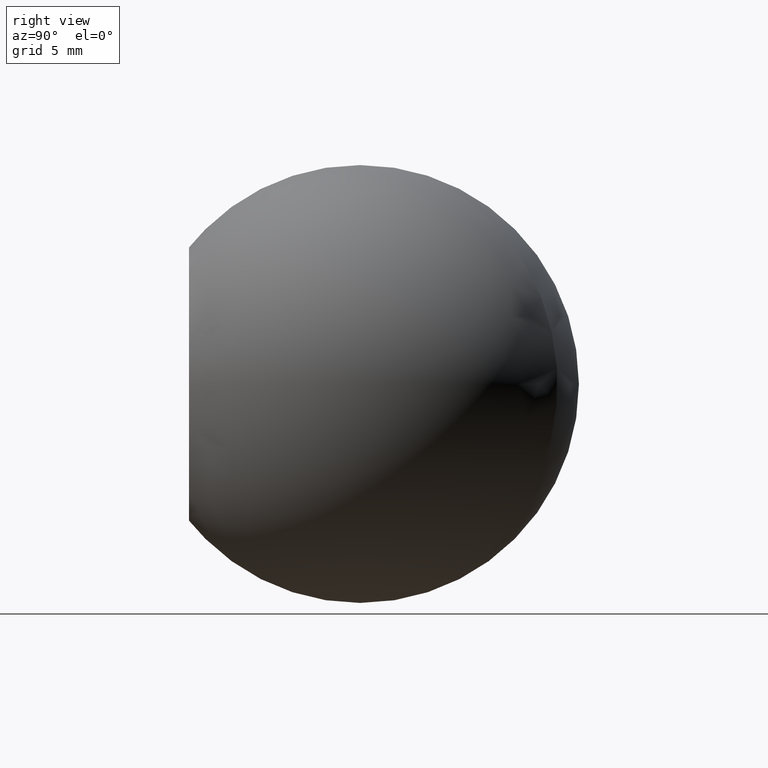
[diagram: clean part render]
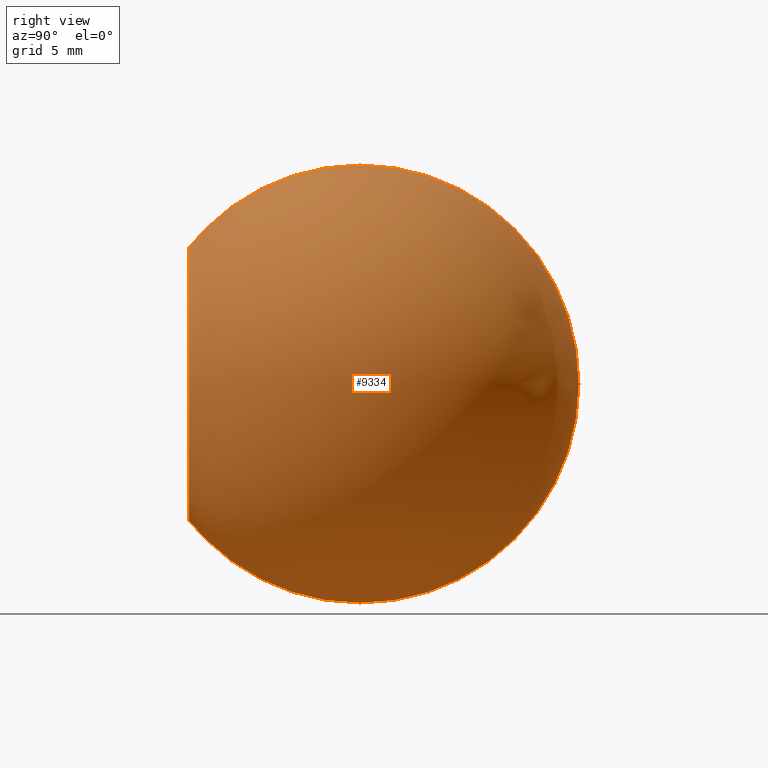
[diagram: same view with one face highlighted and labeled with its STEP entity id]
A machine part, right view. The second image highlights one B-rep face of the part: STEP entity #9334.
In plain terms, the highlighted spherical surface has radius 10 mm.
Its self-contained STEP definition (entity closure, byte-faithful):
#537 = DIRECTION ( 'NONE',  ( -0.0000000000000000000, 1.000000000000000000, -0.0000000000000000000 ) ) ;
#657 = CARTESIAN_POINT ( 'NONE',  ( -4.314083075427450500E-032, 10.00000000000000000, 0.0000000000000000000 ) ) ;
#1143 = ORIENTED_EDGE ( 'NONE', *, *, #1966, .T. ) ;
#1966 = EDGE_CURVE ( 'NONE', #5073, #5073, #9270, .T. ) ;
#3844 = DIRECTION ( 'NONE',  ( -0.0000000000000000000, 0.0000000000000000000, -1.000000000000000000 ) ) ;
#4953 = CARTESIAN_POINT ( 'NONE',  ( -4.314083075427450500E-032, 2.185858390518742800, 6.240127475218248100 ) ) ;
#5073 = VERTEX_POINT ( 'NONE', #4953 ) ;
#9270 = CIRCLE ( 'NONE', #9341, 6.240127475218248100 ) ;
#9334 = ADVANCED_FACE ( 'NONE', ( #9990 ), #9490, .T. ) ;
#9341 = AXIS2_PLACEMENT_3D ( 'NONE', #13247, #537, #13201 ) ;
#9490 = SPHERICAL_SURFACE ( 'NONE', #10900, 10.00000000000000000 ) ;
#9990 = FACE_OUTER_BOUND ( 'NONE', #13472, .T. ) ;
#10900 = AXIS2_PLACEMENT_3D ( 'NONE', #657, #3844, #13414 ) ;
#13201 = DIRECTION ( 'NONE',  ( 0.0000000000000000000, 0.0000000000000000000, 1.000000000000000000 ) ) ;
#13247 = CARTESIAN_POINT ( 'NONE',  ( -4.314083075427450500E-032, 2.185858390518742800, 0.0000000000000000000 ) ) ;
#13414 = DIRECTION ( 'NONE',  ( -1.000000000000000000, -1.734723475976807100E-016, 0.0000000000000000000 ) ) ;
#13472 = EDGE_LOOP ( 'NONE', ( #1143 ) ) ;